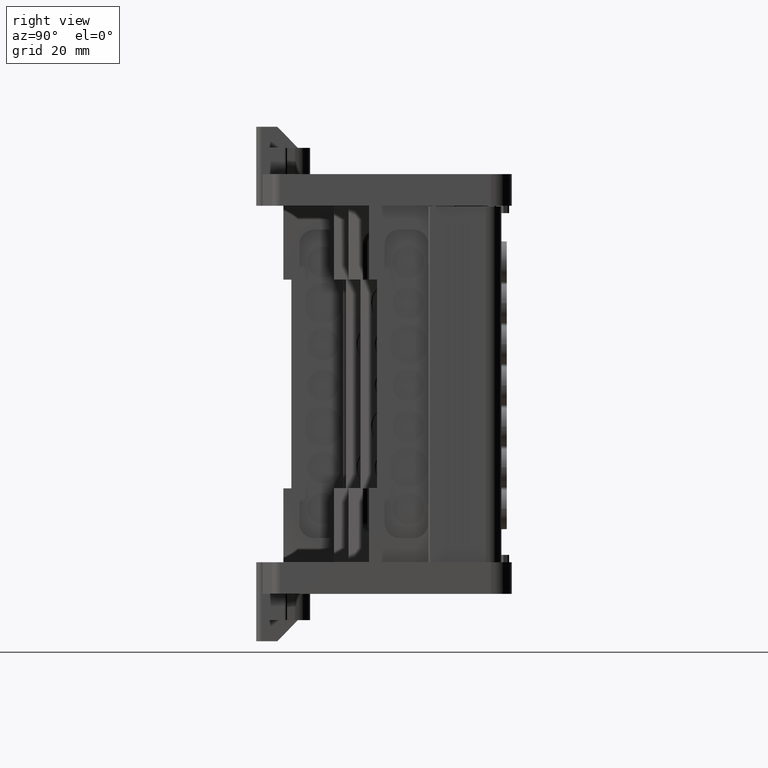
[diagram: clean part render]
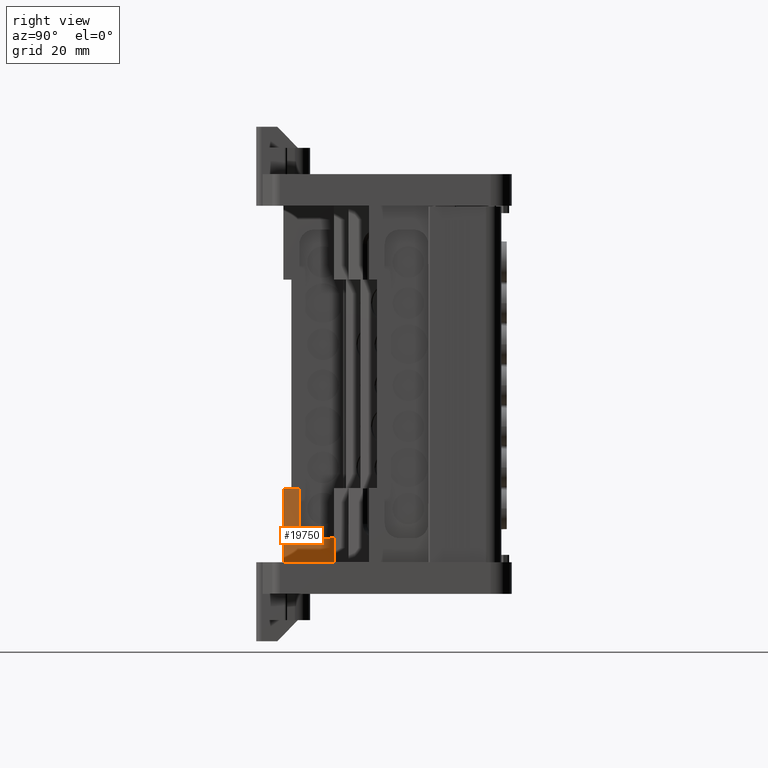
[diagram: same view with one face highlighted and labeled with its STEP entity id]
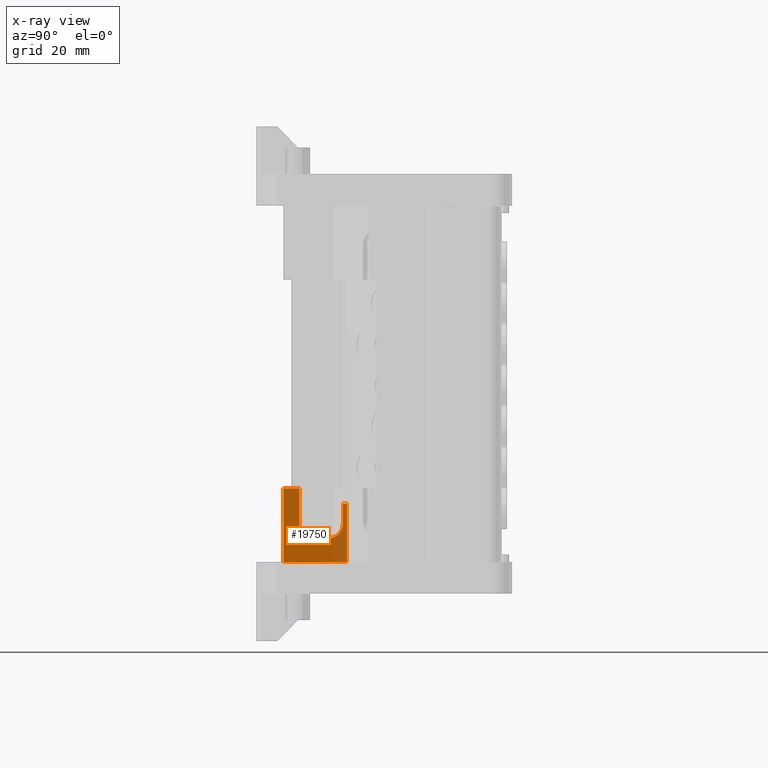
[diagram: x-ray of the same camera — body ghosted, the highlighted face saturated]
A machine part, right view. The second image highlights one B-rep face of the part: STEP entity #19750.
The next image is the same camera in x-ray: the body ghosted, the highlighted face saturated — about 19% of this face is hidden behind the body in this view.
In plain terms, the highlighted planar face has unit normal (1, 0, 0).
Its self-contained STEP definition (entity closure, byte-faithful):
#2594 = EDGE_CURVE ( 'NONE', #78765, #78841, #35867, .T. ) ;
#2655 = EDGE_CURVE ( 'NONE', #78971, #78861, #36869, .T. ) ;
#2674 = EDGE_CURVE ( 'NONE', #78841, #78843, #37045, .T. ) ;
#2681 = EDGE_CURVE ( 'NONE', #78843, #78621, #36071, .T. ) ;
#2692 = EDGE_CURVE ( 'NONE', #78621, #78837, #37169, .T. ) ;
#2709 = EDGE_CURVE ( 'NONE', #78971, #78765, #37371, .T. ) ;
#2871 = EDGE_CURVE ( 'NONE', #78837, #79099, #43211, .T. ) ;
#3221 = B_SPLINE_CURVE_WITH_KNOTS ( 'NONE', 3,
 ( #58642, #58631, #58634, #58599 ),
 .UNSPECIFIED., .F., .F.,
 ( 4, 4 ),
 ( 0.0000000000000000000, 1.000000000000000000 ),
 .UNSPECIFIED. ) ;
#11765 = ORIENTED_EDGE ( 'NONE', *, *, #2681, .T. ) ;
#11788 = ORIENTED_EDGE ( 'NONE', *, *, #19819, .T. ) ;
#11803 = ORIENTED_EDGE ( 'NONE', *, *, #2692, .T. ) ;
#13048 = ORIENTED_EDGE ( 'NONE', *, *, #2709, .T. ) ;
#13053 = ORIENTED_EDGE ( 'NONE', *, *, #2871, .T. ) ;
#13073 = ORIENTED_EDGE ( 'NONE', *, *, #2674, .T. ) ;
#13078 = ORIENTED_EDGE ( 'NONE', *, *, #2655, .F. ) ;
#13090 = ORIENTED_EDGE ( 'NONE', *, *, #19822, .F. ) ;
#13099 = ORIENTED_EDGE ( 'NONE', *, *, #19813, .F. ) ;
#13104 = ORIENTED_EDGE ( 'NONE', *, *, #2594, .T. ) ;
#13110 = ORIENTED_EDGE ( 'NONE', *, *, #19797, .T. ) ;
#19750 = ADVANCED_FACE ( 'NONE', ( #56442 ), #56456, .T. ) ;
#19797 = EDGE_CURVE ( 'NONE', #90220, #78861, #58550, .T. ) ;
#19813 = EDGE_CURVE ( 'NONE', #90241, #79099, #58629, .T. ) ;
#19819 = EDGE_CURVE ( 'NONE', #90241, #90226, #3221, .T. ) ;
#19822 = EDGE_CURVE ( 'NONE', #90220, #90226, #58686, .T. ) ;
#35867 = CIRCLE ( 'NONE', #35936, 2.771999999999996700 ) ;
#35936 = AXIS2_PLACEMENT_3D ( 'NONE', #39767, #39781, #39796 ) ;
#36020 = VECTOR ( 'NONE', #36977, 1000.000000000000000 ) ;
#36050 = AXIS2_PLACEMENT_3D ( 'NONE', #37071, #37136, #37085 ) ;
#36061 = VECTOR ( 'NONE', #36932, 1000.000000000000000 ) ;
#36071 = CIRCLE ( 'NONE', #36050, 2.771999999999996700 ) ;
#36160 = VECTOR ( 'NONE', #37248, 1000.000000000000000 ) ;
#36210 = VECTOR ( 'NONE', #37441, 1000.000000000000000 ) ;
#36575 = VECTOR ( 'NONE', #43255, 1000.000000000000000 ) ;
#36869 = LINE ( 'NONE', #36927, #36061 ) ;
#36927 = CARTESIAN_POINT ( 'NONE',  ( 365.7449546087406100, -98.80837281275098900, 39.68260800001269200 ) ) ;
#36932 = DIRECTION ( 'NONE',  ( -0.0000000000000000000, 1.000000000000000000, -7.965850201685501300E-015 ) ) ;
#36968 = CARTESIAN_POINT ( 'NONE',  ( 365.7449546087424900, -115.8212248916804000, 33.14260800001270000 ) ) ;
#36977 = DIRECTION ( 'NONE',  ( 1.453177907011995900E-013, -1.000000000000000000, -0.0000000000000000000 ) ) ;
#37045 = LINE ( 'NONE', #36968, #36020 ) ;
#37071 = CARTESIAN_POINT ( 'NONE',  ( 365.7449546087413500, -107.1667539012285700, 35.91460800001269900 ) ) ;
#37085 = DIRECTION ( 'NONE',  ( -1.401796748264088300E-013, 1.000000000000000000, 0.0000000000000000000 ) ) ;
#37136 = DIRECTION ( 'NONE',  ( -1.000000000000000000, -1.453177907011995900E-013, -3.469446950784519600E-018 ) ) ;
#37169 = LINE ( 'NONE', #37281, #36160 ) ;
#37248 = DIRECTION ( 'NONE',  ( -3.469446950784518900E-018, -5.041723658430198100E-031, 1.000000000000000000 ) ) ;
#37281 = CARTESIAN_POINT ( 'NONE',  ( 365.7449546087416900, -109.9387539012284500, 112.2686880000128600 ) ) ;
#37355 = CARTESIAN_POINT ( 'NONE',  ( 365.7449546087404400, -101.6784645605706200, 112.2686880000128600 ) ) ;
#37371 = LINE ( 'NONE', #37355, #36210 ) ;
#37441 = DIRECTION ( 'NONE',  ( 3.469446950784518900E-018, 5.041723658430198100E-031, -1.000000000000000000 ) ) ;
#39767 = CARTESIAN_POINT ( 'NONE',  ( 365.7449546087408400, -104.4504645605705800, 35.91460800001269900 ) ) ;
#39781 = DIRECTION ( 'NONE',  ( -1.000000000000000000, -1.453177907011995900E-013, -3.469446950784519600E-018 ) ) ;
#39796 = DIRECTION ( 'NONE',  ( -1.401796748264088300E-013, 1.000000000000000000, 0.0000000000000000000 ) ) ;
#43179 = CARTESIAN_POINT ( 'NONE',  ( 365.7449546087424900, -115.8212248916804000, 42.61198635155147200 ) ) ;
#43211 = LINE ( 'NONE', #43179, #36575 ) ;
#43255 = DIRECTION ( 'NONE',  ( 1.453177907011995900E-013, -1.000000000000000000, -0.0000000000000000000 ) ) ;
#52804 = AXIS2_PLACEMENT_3D ( 'NONE', #56446, #56475, #56448 ) ;
#52870 = VECTOR ( 'NONE', #58626, 1000.000000000000000 ) ;
#52885 = VECTOR ( 'NONE', #58561, 1000.000000000000000 ) ;
#52928 = VECTOR ( 'NONE', #58685, 1000.000000000000000 ) ;
#56442 = FACE_OUTER_BOUND ( 'NONE', #80156, .T. ) ;
#56446 = CARTESIAN_POINT ( 'NONE',  ( 365.7449546087424900, -115.8212248916804000, 112.2686880000128600 ) ) ;
#56448 = DIRECTION ( 'NONE',  ( -1.453177907011995900E-013, 1.000000000000000000, 0.0000000000000000000 ) ) ;
#56456 = PLANE ( 'NONE',  #52804 ) ;
#56475 = DIRECTION ( 'NONE',  ( 1.000000000000000000, 1.453177907011995900E-013, 3.469446950784518900E-018 ) ) ;
#58550 = LINE ( 'NONE', #58558, #52885 ) ;
#58558 = CARTESIAN_POINT ( 'NONE',  ( 365.7449546087403300, -100.9035794228214900, 112.2686880000128600 ) ) ;
#58561 = DIRECTION ( 'NONE',  ( -3.469446950784518900E-018, -5.041723658430198100E-031, 1.000000000000000000 ) ) ;
#58599 = CARTESIAN_POINT ( 'NONE',  ( 365.7449546087423200, -112.9479676076168300, 28.59460800001230000 ) ) ;
#58624 = CARTESIAN_POINT ( 'NONE',  ( 365.7449546087421500, -112.9672203543716200, 28.59460800001279100 ) ) ;
#58626 = DIRECTION ( 'NONE',  ( -3.469446951922201900E-018, 7.828931295266021800E-015, 1.000000000000000000 ) ) ;
#58629 = LINE ( 'NONE', #58624, #52870 ) ;
#58631 = CARTESIAN_POINT ( 'NONE',  ( 365.7449546087421500, -112.9608027721199200, 28.59460800001234300 ) ) ;
#58634 = CARTESIAN_POINT ( 'NONE',  ( 365.7449546087420900, -112.9543851898684000, 28.59460800001234300 ) ) ;
#58642 = CARTESIAN_POINT ( 'NONE',  ( 365.7433252115449100, -112.9670899273818100, 28.59460800001227200 ) ) ;
#58684 = CARTESIAN_POINT ( 'NONE',  ( 365.7449546087403300, -169.2347410558980100, 28.59460800001209400 ) ) ;
#58685 = DIRECTION ( 'NONE',  ( 0.0000000000000000000, -1.000000000000000000, -0.0000000000000000000 ) ) ;
#58686 = LINE ( 'NONE', #58684, #52928 ) ;
#69660 = CARTESIAN_POINT ( 'NONE',  ( 365.7449546087417500, -109.9387539012283400, 35.91460800001270600 ) ) ;
#69732 = CARTESIAN_POINT ( 'NONE',  ( 365.7449546087404400, -101.6784645605705900, 35.91460800001269900 ) ) ;
#69768 = CARTESIAN_POINT ( 'NONE',  ( 365.7449546087408400, -104.4504645605706700, 33.14260800001270000 ) ) ;
#69769 = CARTESIAN_POINT ( 'NONE',  ( 365.7449546087416900, -109.9387539012284800, 42.61198635155147900 ) ) ;
#69793 = CARTESIAN_POINT ( 'NONE',  ( 365.7449546087413000, -107.1667539012285200, 33.14260800001270000 ) ) ;
#69804 = CARTESIAN_POINT ( 'NONE',  ( 365.7449546087404400, -100.9035794228214900, 39.68260800001269200 ) ) ;
#69812 = CARTESIAN_POINT ( 'NONE',  ( 365.7449546087405000, -101.6784645605706700, 39.68260800001269900 ) ) ;
#69921 = CARTESIAN_POINT ( 'NONE',  ( 365.7449546087421500, -112.9672203543715100, 42.61198635155147200 ) ) ;
#75495 = CARTESIAN_POINT ( 'NONE',  ( 365.7449546087403300, -100.9035794228215500, 28.59460800001209400 ) ) ;
#75503 = CARTESIAN_POINT ( 'NONE',  ( 365.7433252115449100, -112.9670899273818100, 28.59460800001227200 ) ) ;
#75540 = CARTESIAN_POINT ( 'NONE',  ( 365.7449546087423200, -112.9479676076168300, 28.59460800001230000 ) ) ;
#78621 = VERTEX_POINT ( 'NONE', #69660 ) ;
#78765 = VERTEX_POINT ( 'NONE', #69732 ) ;
#78837 = VERTEX_POINT ( 'NONE', #69769 ) ;
#78841 = VERTEX_POINT ( 'NONE', #69768 ) ;
#78843 = VERTEX_POINT ( 'NONE', #69793 ) ;
#78861 = VERTEX_POINT ( 'NONE', #69804 ) ;
#78971 = VERTEX_POINT ( 'NONE', #69812 ) ;
#79099 = VERTEX_POINT ( 'NONE', #69921 ) ;
#80156 = EDGE_LOOP ( 'NONE', ( #13048, #13104, #13073, #11765, #11803, #13053, #13099, #11788, #13090, #13110, #13078 ) ) ;
#90220 = VERTEX_POINT ( 'NONE', #75495 ) ;
#90226 = VERTEX_POINT ( 'NONE', #75540 ) ;
#90241 = VERTEX_POINT ( 'NONE', #75503 ) ;